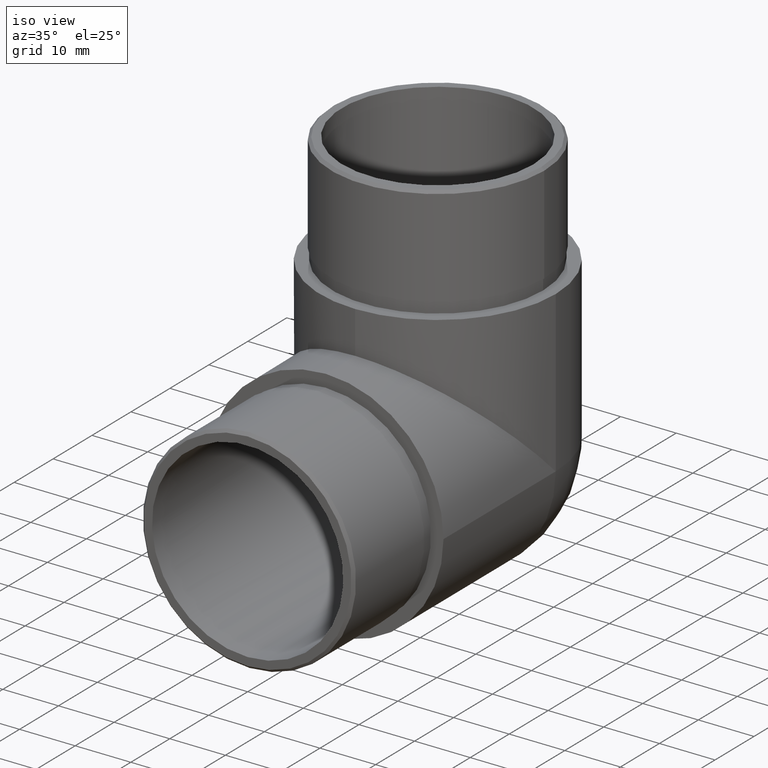
[diagram: clean part render]
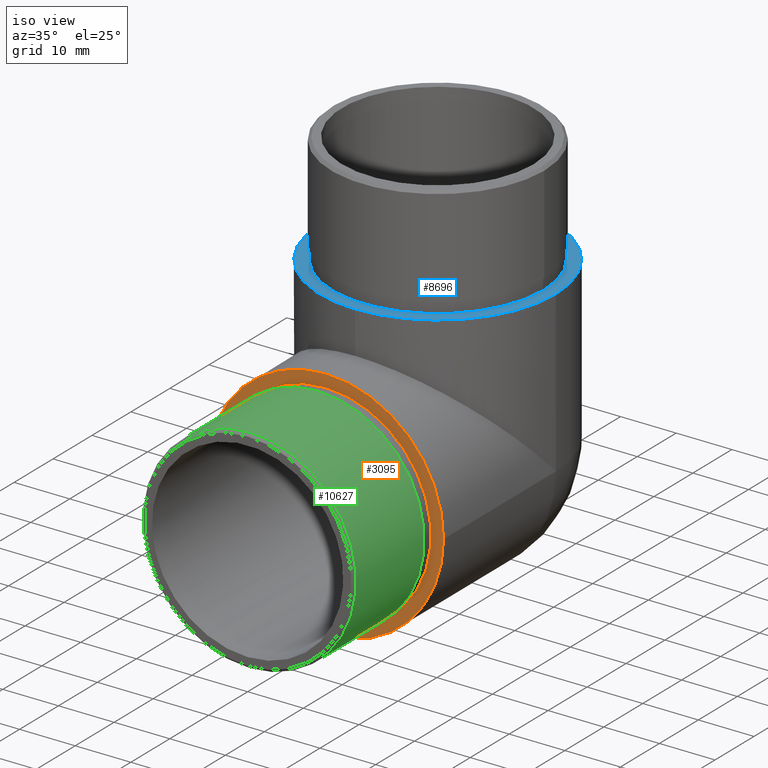
[diagram: same view with three faces highlighted in distinct colors, each labeled with its STEP entity id]
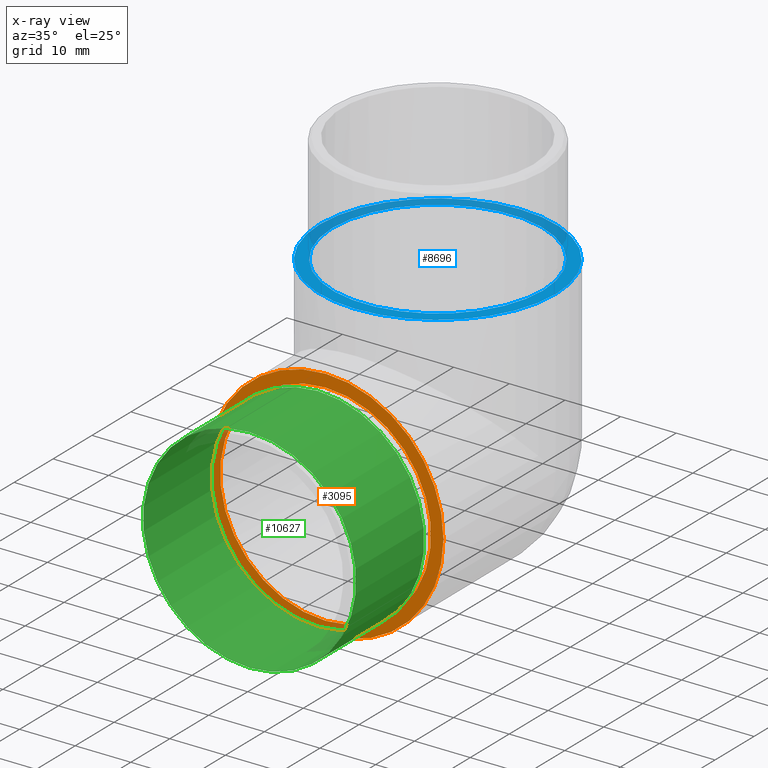
[diagram: x-ray of the same camera — body ghosted, the three highlighted faces saturated]
A machine part, iso view with three faces highlighted in distinct colors.
The next image is the same camera in x-ray (body ghosted, the three faces saturated) — at least one of them is partly hidden behind the body in this view.
Their STEP definitions:

[orange] entity #3095 — the highlighted planar face has unit normal (0, 1, 0).
#759 = CARTESIAN_POINT ( 'NONE',  ( 3.469446951953614200E-015, 0.0000000000000000000, 21.19999999999999600 ) ) ;
#887 = AXIS2_PLACEMENT_3D ( 'NONE', #3458, #9468, #10426 ) ;
#1177 = EDGE_LOOP ( 'NONE', ( #11277 ) ) ;
#1356 = PLANE ( 'NONE',  #1362 ) ;
#1362 = AXIS2_PLACEMENT_3D ( 'NONE', #8023, #11970, #7211 ) ;
#1714 = DIRECTION ( 'NONE',  ( -8.881784197001252300E-016, 0.0000000000000000000, 1.000000000000000000 ) ) ;
#1721 = DIRECTION ( 'NONE',  ( -0.0000000000000000000, -1.000000000000000000, -0.0000000000000000000 ) ) ;
#1843 = VERTEX_POINT ( 'NONE', #8357 ) ;
#2340 = CARTESIAN_POINT ( 'NONE',  ( 3.469446951953614200E-015, 0.0000000000000000000, 40.14999999999999100 ) ) ;
#2658 = ORIENTED_EDGE ( 'NONE', *, *, #8618, .T. ) ;
#2694 = CARTESIAN_POINT ( 'NONE',  ( 3.469446951953614200E-015, 0.0000000000000000000, 42.39999999999999100 ) ) ;
#2729 = CARTESIAN_POINT ( 'NONE',  ( 0.0000000000000000000, 0.0000000000000000000, 21.19999999999999900 ) ) ;
#3095 = ADVANCED_FACE ( 'NONE', ( #6146, #5237 ), #1356, .F. ) ;
#3221 = EDGE_CURVE ( 'NONE', #1843, #5932, #9105, .T. ) ;
#3458 = CARTESIAN_POINT ( 'NONE',  ( 3.469446951953614200E-015, 0.0000000000000000000, 21.19999999999999900 ) ) ;
#3560 = ORIENTED_EDGE ( 'NONE', *, *, #11244, .T. ) ;
#3645 = ORIENTED_EDGE ( 'NONE', *, *, #3221, .T. ) ;
#3971 = VERTEX_POINT ( 'NONE', #2340 ) ;
#4967 = VERTEX_POINT ( 'NONE', #2694 ) ;
#5013 = EDGE_CURVE ( 'NONE', #3971, #3971, #12073, .T. ) ;
#5158 = CARTESIAN_POINT ( 'NONE',  ( -21.19999999999999600, 0.0000000000000000000, 21.20000000000000300 ) ) ;
#5237 = FACE_BOUND ( 'NONE', #1177, .T. ) ;
#5932 = VERTEX_POINT ( 'NONE', #9467 ) ;
#6050 = EDGE_LOOP ( 'NONE', ( #3645, #9755, #3560, #2658 ) ) ;
#6146 = FACE_OUTER_BOUND ( 'NONE', #6050, .T. ) ;
#6302 = DIRECTION ( 'NONE',  ( 0.0000000000000000000, 0.0000000000000000000, 1.000000000000000000 ) ) ;
#6703 = CIRCLE ( 'NONE', #10814, 21.19999999999999900 ) ;
#6999 = AXIS2_PLACEMENT_3D ( 'NONE', #759, #1721, #8382 ) ;
#7072 = AXIS2_PLACEMENT_3D ( 'NONE', #9457, #9538, #11373 ) ;
#7211 = DIRECTION ( 'NONE',  ( 0.0000000000000000000, -0.0000000000000000000, 1.000000000000000000 ) ) ;
#7819 = EDGE_CURVE ( 'NONE', #5932, #4967, #6703, .T. ) ;
#8023 = CARTESIAN_POINT ( 'NONE',  ( 0.0000000000000000000, 0.0000000000000000000, 0.0000000000000000000 ) ) ;
#8357 = CARTESIAN_POINT ( 'NONE',  ( 3.469446951953614200E-015, 0.0000000000000000000, 2.063529856563289800E-015 ) ) ;
#8382 = DIRECTION ( 'NONE',  ( 0.0000000000000000000, 0.0000000000000000000, 1.000000000000000000 ) ) ;
#8618 = EDGE_CURVE ( 'NONE', #10061, #1843, #10387, .T. ) ;
#9105 = CIRCLE ( 'NONE', #887, 21.19999999999999900 ) ;
#9457 = CARTESIAN_POINT ( 'NONE',  ( 0.0000000000000000000, 0.0000000000000000000, 21.20000000000000300 ) ) ;
#9467 = CARTESIAN_POINT ( 'NONE',  ( 21.19999999999999600, 0.0000000000000000000, 21.19999999999999900 ) ) ;
#9468 = DIRECTION ( 'NONE',  ( -0.0000000000000000000, -1.000000000000000000, -0.0000000000000000000 ) ) ;
#9538 = DIRECTION ( 'NONE',  ( -0.0000000000000000000, -1.000000000000000000, -0.0000000000000000000 ) ) ;
#9621 = CIRCLE ( 'NONE', #10173, 21.19999999999999600 ) ;
#9755 = ORIENTED_EDGE ( 'NONE', *, *, #7819, .T. ) ;
#9982 = CARTESIAN_POINT ( 'NONE',  ( 3.469446951953614200E-015, 0.0000000000000000000, 21.19999999999999600 ) ) ;
#10061 = VERTEX_POINT ( 'NONE', #5158 ) ;
#10101 = DIRECTION ( 'NONE',  ( -0.0000000000000000000, -1.000000000000000000, -0.0000000000000000000 ) ) ;
#10173 = AXIS2_PLACEMENT_3D ( 'NONE', #9982, #10101, #6302 ) ;
#10286 = DIRECTION ( 'NONE',  ( -0.0000000000000000000, -1.000000000000000000, -0.0000000000000000000 ) ) ;
#10387 = CIRCLE ( 'NONE', #7072, 21.20000000000000300 ) ;
#10426 = DIRECTION ( 'NONE',  ( 0.0000000000000000000, 0.0000000000000000000, 1.000000000000000000 ) ) ;
#10814 = AXIS2_PLACEMENT_3D ( 'NONE', #2729, #10286, #1714 ) ;
#11244 = EDGE_CURVE ( 'NONE', #4967, #10061, #9621, .T. ) ;
#11277 = ORIENTED_EDGE ( 'NONE', *, *, #5013, .F. ) ;
#11373 = DIRECTION ( 'NONE',  ( 0.0000000000000000000, 0.0000000000000000000, 1.000000000000000000 ) ) ;
#11970 = DIRECTION ( 'NONE',  ( 0.0000000000000000000, 1.000000000000000000, 0.0000000000000000000 ) ) ;
#12073 = CIRCLE ( 'NONE', #6999, 18.94999999999999600 ) ;

[blue] entity #8696 — the highlighted planar face has unit normal (0, 0, 1).
#114 = CARTESIAN_POINT ( 'NONE',  ( 21.19999999999999600, 28.80000000000000800, 50.00000000000000000 ) ) ;
#477 = VERTEX_POINT ( 'NONE', #114 ) ;
#601 = DIRECTION ( 'NONE',  ( 1.000000000000000000, 0.0000000000000000000, 0.0000000000000000000 ) ) ;
#686 = DIRECTION ( 'NONE',  ( 0.0000000000000000000, 0.0000000000000000000, 1.000000000000000000 ) ) ;
#1180 = CARTESIAN_POINT ( 'NONE',  ( 3.469446951953614200E-015, 28.80000000000000800, 50.00000000000000000 ) ) ;
#1999 = EDGE_CURVE ( 'NONE', #7990, #477, #5687, .T. ) ;
#2030 = VERTEX_POINT ( 'NONE', #2787 ) ;
#2379 = CARTESIAN_POINT ( 'NONE',  ( 18.94999999999999600, 28.80000000000000800, 50.00000000000000000 ) ) ;
#2423 = CARTESIAN_POINT ( 'NONE',  ( -3.469446951953614200E-015, 28.80000000000000800, 50.00000000000000000 ) ) ;
#2550 = CIRCLE ( 'NONE', #3732, 21.19999999999999900 ) ;
#2642 = CIRCLE ( 'NONE', #8896, 21.19999999999999900 ) ;
#2663 = EDGE_CURVE ( 'NONE', #2030, #6949, #8968, .T. ) ;
#2787 = CARTESIAN_POINT ( 'NONE',  ( -3.469446951953614200E-015, 50.00000000000000000, 50.00000000000000000 ) ) ;
#2853 = DIRECTION ( 'NONE',  ( 0.0000000000000000000, 0.0000000000000000000, 1.000000000000000000 ) ) ;
#3345 = DIRECTION ( 'NONE',  ( 1.000000000000000000, 0.0000000000000000000, 0.0000000000000000000 ) ) ;
#3374 = EDGE_LOOP ( 'NONE', ( #8009, #3990, #4095, #11144 ) ) ;
#3732 = AXIS2_PLACEMENT_3D ( 'NONE', #1180, #5314, #5225 ) ;
#3990 = ORIENTED_EDGE ( 'NONE', *, *, #2663, .T. ) ;
#4095 = ORIENTED_EDGE ( 'NONE', *, *, #4802, .T. ) ;
#4681 = DIRECTION ( 'NONE',  ( 1.000000000000000000, 0.0000000000000000000, 0.0000000000000000000 ) ) ;
#4802 = EDGE_CURVE ( 'NONE', #6949, #7990, #2550, .T. ) ;
#5080 = EDGE_LOOP ( 'NONE', ( #8865 ) ) ;
#5225 = DIRECTION ( 'NONE',  ( 1.000000000000000000, 0.0000000000000000000, 0.0000000000000000000 ) ) ;
#5314 = DIRECTION ( 'NONE',  ( 0.0000000000000000000, 0.0000000000000000000, 1.000000000000000000 ) ) ;
#5458 = CARTESIAN_POINT ( 'NONE',  ( -3.469446951953614200E-015, 28.80000000000000800, 50.00000000000000000 ) ) ;
#5512 = CIRCLE ( 'NONE', #7870, 18.94999999999999900 ) ;
#5646 = CARTESIAN_POINT ( 'NONE',  ( 3.469446951953614200E-015, 28.80000000000000800, 50.00000000000000000 ) ) ;
#5687 = CIRCLE ( 'NONE', #8691, 21.19999999999999900 ) ;
#6692 = FACE_OUTER_BOUND ( 'NONE', #3374, .T. ) ;
#6949 = VERTEX_POINT ( 'NONE', #8767 ) ;
#7134 = EDGE_CURVE ( 'NONE', #9313, #9313, #5512, .T. ) ;
#7523 = CARTESIAN_POINT ( 'NONE',  ( 0.0000000000000000000, 28.80000000000001100, 50.00000000000000000 ) ) ;
#7609 = CARTESIAN_POINT ( 'NONE',  ( -3.469446951953614200E-015, 28.80000000000000800, 50.00000000000000000 ) ) ;
#7856 = FACE_BOUND ( 'NONE', #5080, .T. ) ;
#7870 = AXIS2_PLACEMENT_3D ( 'NONE', #5458, #686, #601 ) ;
#7990 = VERTEX_POINT ( 'NONE', #11649 ) ;
#8009 = ORIENTED_EDGE ( 'NONE', *, *, #11224, .T. ) ;
#8443 = DIRECTION ( 'NONE',  ( 0.0000000000000000000, 0.0000000000000000000, 1.000000000000000000 ) ) ;
#8558 = DIRECTION ( 'NONE',  ( 1.000000000000000000, 0.0000000000000000000, 0.0000000000000000000 ) ) ;
#8691 = AXIS2_PLACEMENT_3D ( 'NONE', #7609, #8443, #8558 ) ;
#8696 = ADVANCED_FACE ( 'NONE', ( #6692, #7856 ), #11290, .T. ) ;
#8767 = CARTESIAN_POINT ( 'NONE',  ( -21.19999999999999600, 28.80000000000000800, 50.00000000000000000 ) ) ;
#8865 = ORIENTED_EDGE ( 'NONE', *, *, #7134, .F. ) ;
#8896 = AXIS2_PLACEMENT_3D ( 'NONE', #2423, #9106, #3345 ) ;
#8968 = CIRCLE ( 'NONE', #9816, 21.19999999999999900 ) ;
#9106 = DIRECTION ( 'NONE',  ( 0.0000000000000000000, 0.0000000000000000000, 1.000000000000000000 ) ) ;
#9313 = VERTEX_POINT ( 'NONE', #2379 ) ;
#9410 = DIRECTION ( 'NONE',  ( 0.0000000000000000000, 0.0000000000000000000, 1.000000000000000000 ) ) ;
#9816 = AXIS2_PLACEMENT_3D ( 'NONE', #5646, #9410, #4681 ) ;
#10457 = DIRECTION ( 'NONE',  ( 1.000000000000000000, 0.0000000000000000000, -0.0000000000000000000 ) ) ;
#11144 = ORIENTED_EDGE ( 'NONE', *, *, #1999, .T. ) ;
#11224 = EDGE_CURVE ( 'NONE', #477, #2030, #2642, .T. ) ;
#11290 = PLANE ( 'NONE',  #11747 ) ;
#11649 = CARTESIAN_POINT ( 'NONE',  ( -3.469446951953614200E-015, 7.600000000000009400, 50.00000000000000000 ) ) ;
#11747 = AXIS2_PLACEMENT_3D ( 'NONE', #7523, #2853, #10457 ) ;

[green] entity #10627 — the highlighted cylindrical surface (bore or boss wall) has radius 19.15 mm, axis along (-0, 1, -0).
#435 = DIRECTION ( 'NONE',  ( 0.0000000000000000000, -1.000000000000000000, 0.0000000000000000000 ) ) ;
#516 = VERTEX_POINT ( 'NONE', #6224 ) ;
#710 = DIRECTION ( 'NONE',  ( 0.0000000000000000000, 1.000000000000000000, 0.0000000000000000000 ) ) ;
#2036 = CIRCLE ( 'NONE', #10476, 19.14999999999999900 ) ;
#2707 = ORIENTED_EDGE ( 'NONE', *, *, #9813, .T. ) ;
#2857 = CIRCLE ( 'NONE', #10161, 19.14999999999999900 ) ;
#3286 = DIRECTION ( 'NONE',  ( 0.0000000000000000000, 0.0000000000000000000, -1.000000000000000000 ) ) ;
#3571 = CARTESIAN_POINT ( 'NONE',  ( 0.0000000000000000000, -19.99999999999999600, 21.20000000000000300 ) ) ;
#4007 = EDGE_CURVE ( 'NONE', #9006, #9006, #2857, .T. ) ;
#5722 = AXIS2_PLACEMENT_3D ( 'NONE', #3571, #6370, #11960 ) ;
#6021 = EDGE_LOOP ( 'NONE', ( #11390 ) ) ;
#6224 = CARTESIAN_POINT ( 'NONE',  ( 0.0000000000000000000, -19.49999999999998200, 2.050000000000006500 ) ) ;
#6227 = EDGE_LOOP ( 'NONE', ( #2707 ) ) ;
#6286 = CARTESIAN_POINT ( 'NONE',  ( 0.0000000000000000000, -2.000000000000000000, 21.20000000000000300 ) ) ;
#6370 = DIRECTION ( 'NONE',  ( -0.0000000000000000000, 1.000000000000000000, -0.0000000000000000000 ) ) ;
#7472 = DIRECTION ( 'NONE',  ( 0.0000000000000000000, 0.0000000000000000000, -1.000000000000000000 ) ) ;
#7488 = FACE_OUTER_BOUND ( 'NONE', #6227, .T. ) ;
#8804 = FACE_OUTER_BOUND ( 'NONE', #6021, .T. ) ;
#8976 = CARTESIAN_POINT ( 'NONE',  ( 0.0000000000000000000, -2.000000000000000000, 2.050000000000006500 ) ) ;
#9006 = VERTEX_POINT ( 'NONE', #8976 ) ;
#9230 = CYLINDRICAL_SURFACE ( 'NONE', #5722, 19.14999999999999500 ) ;
#9813 = EDGE_CURVE ( 'NONE', #516, #516, #2036, .T. ) ;
#10161 = AXIS2_PLACEMENT_3D ( 'NONE', #6286, #435, #3286 ) ;
#10476 = AXIS2_PLACEMENT_3D ( 'NONE', #11153, #710, #7472 ) ;
#10627 = ADVANCED_FACE ( 'NONE', ( #7488, #8804 ), #9230, .T. ) ;
#11153 = CARTESIAN_POINT ( 'NONE',  ( 0.0000000000000000000, -19.49999999999998200, 21.20000000000000300 ) ) ;
#11390 = ORIENTED_EDGE ( 'NONE', *, *, #4007, .T. ) ;
#11960 = DIRECTION ( 'NONE',  ( 0.0000000000000000000, 0.0000000000000000000, 1.000000000000000000 ) ) ;